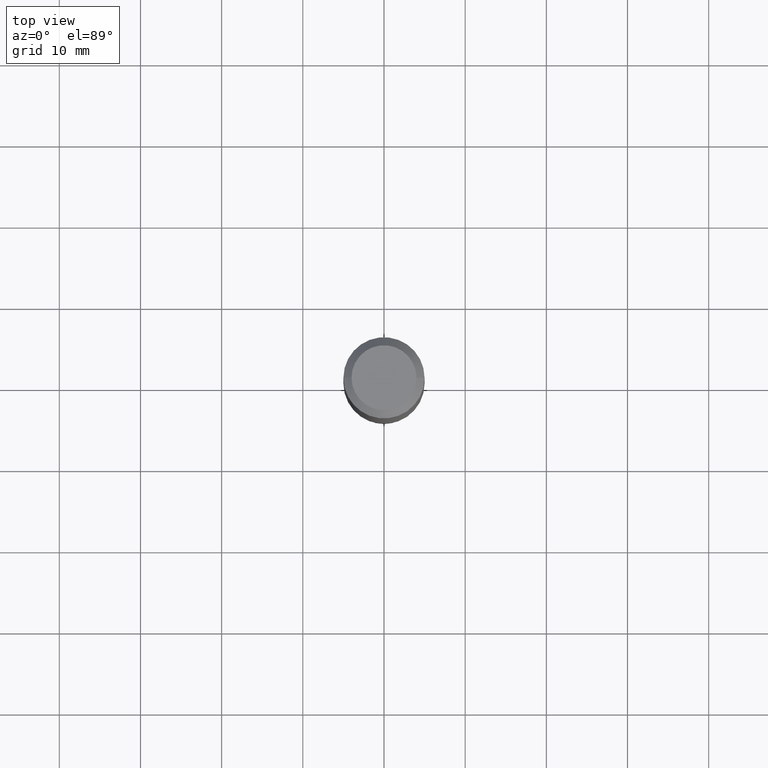
[diagram: clean part render]
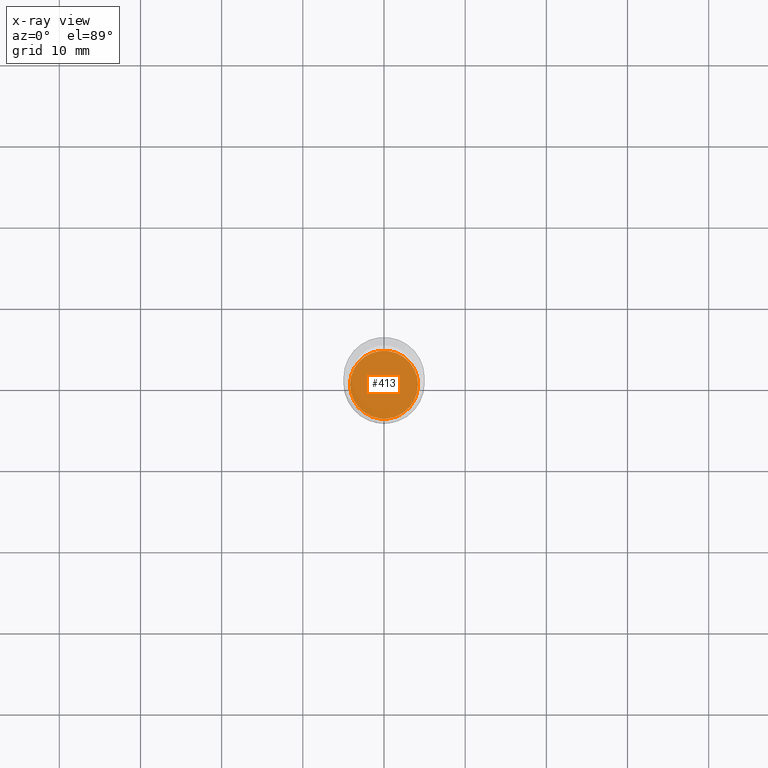
[diagram: x-ray — body ghosted, one internal face saturated and labeled with its STEP entity id]
A machine part, top view, then the same camera in x-ray: the body is ghosted and one INTERNAL B-rep face — a face not visible from any outside direction — is saturated and labeled: STEP entity #413.
In plain terms, the highlighted planar face has unit normal (-0, 0, 1).
Its self-contained STEP definition (entity closure, byte-faithful):
#13 = EDGE_CURVE ( 'NONE', #225, #152, #80, .T. ) ;
#19 = PLANE ( 'NONE',  #32 ) ;
#32 = AXIS2_PLACEMENT_3D ( 'NONE', #377, #119, #477 ) ;
#75 = AXIS2_PLACEMENT_3D ( 'NONE', #437, #394, #420 ) ;
#80 = CIRCLE ( 'NONE', #75, 0.1648499999999999965 ) ;
#86 = EDGE_LOOP ( 'NONE', ( #146, #130 ) ) ;
#119 = DIRECTION ( 'NONE',  ( -2.438088387897960049E-29, 3.491481338843145188E-15, 1.000000000000000000 ) ) ;
#130 = ORIENTED_EDGE ( 'NONE', *, *, #13, .F. ) ;
#146 = ORIENTED_EDGE ( 'NONE', *, *, #153, .F. ) ;
#152 = VERTEX_POINT ( 'NONE', #242 ) ;
#153 = EDGE_CURVE ( 'NONE', #152, #225, #367, .T. ) ;
#160 = CARTESIAN_POINT ( 'NONE',  ( 4.852299205232547281E-29, -6.927797272532568497E-15, -1.984199999999999742 ) ) ;
#178 = AXIS2_PLACEMENT_3D ( 'NONE', #160, #428, #200 ) ;
#200 = DIRECTION ( 'NONE',  ( 1.000000000000000000, -6.982962677686268288E-15, 0.000000000000000000 ) ) ;
#225 = VERTEX_POINT ( 'NONE', #364 ) ;
#242 = CARTESIAN_POINT ( 'NONE',  ( 0.1648499999999999965, -8.078938669949150549E-15, -1.984199999999999742 ) ) ;
#350 = FACE_OUTER_BOUND ( 'NONE', #86, .T. ) ;
#364 = CARTESIAN_POINT ( 'NONE',  ( -0.1648499999999999965, -5.753818345457932559E-15, -1.984199999999999742 ) ) ;
#367 = CIRCLE ( 'NONE', #178, 0.1648499999999999965 ) ;
#377 = CARTESIAN_POINT ( 'NONE',  ( 2.556188913515132998E-29, -1.021595789675375694E-14, -1.984199999999999520 ) ) ;
#394 = DIRECTION ( 'NONE',  ( -2.445468806185136597E-29, 3.491481338843145583E-15, 1.000000000000000000 ) ) ;
#413 = ADVANCED_FACE ( 'NONE', ( #350 ), #19, .F. ) ;
#420 = DIRECTION ( 'NONE',  ( 1.000000000000000000, -6.982962677686268288E-15, 0.000000000000000000 ) ) ;
#428 = DIRECTION ( 'NONE',  ( -2.445468806185136597E-29, 3.491481338843145583E-15, 1.000000000000000000 ) ) ;
#437 = CARTESIAN_POINT ( 'NONE',  ( 4.852299205232547281E-29, -6.927797272532568497E-15, -1.984199999999999742 ) ) ;
#477 = DIRECTION ( 'NONE',  ( 1.000000000000000000, -6.982962677686265922E-15, 4.876176775795935793E-29 ) ) ;